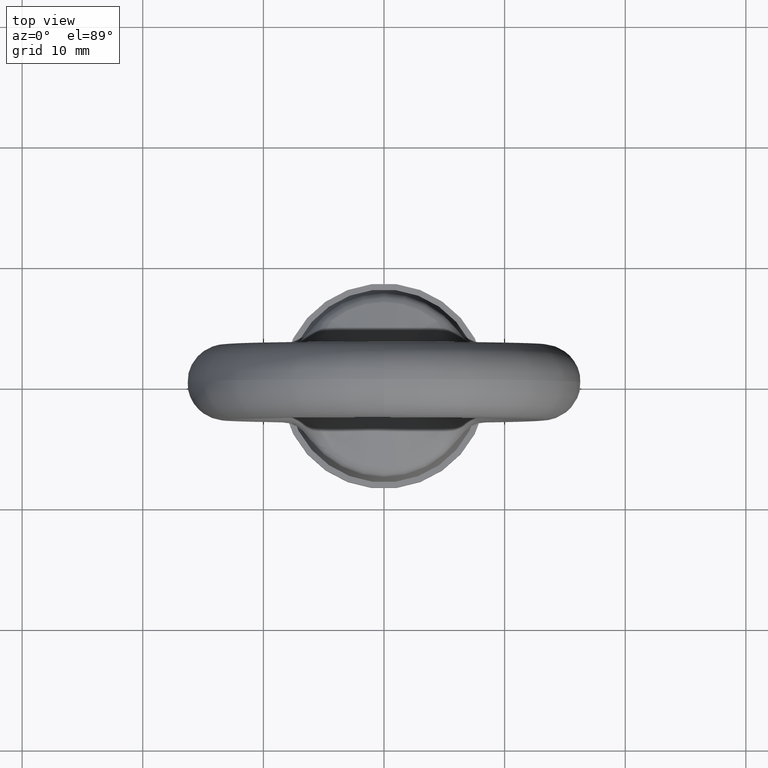
[diagram: clean part render]
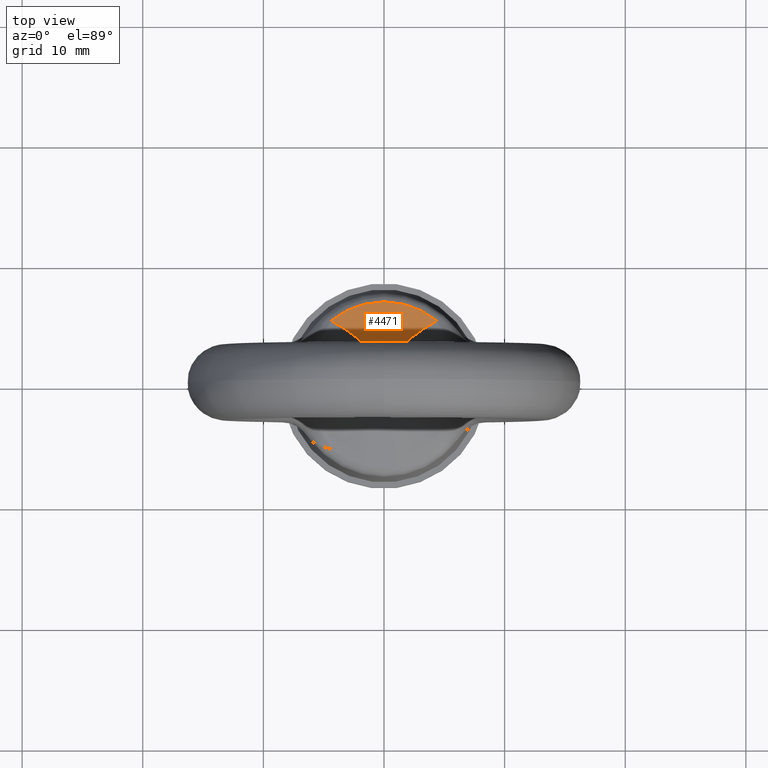
[diagram: same view with one face highlighted and labeled with its STEP entity id]
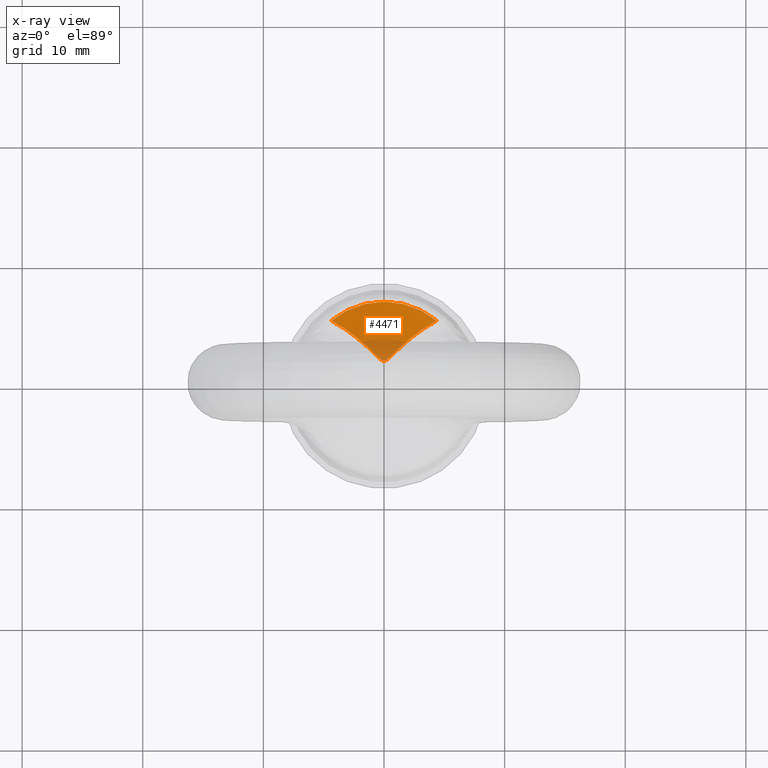
[diagram: x-ray of the same camera — body ghosted, the highlighted face saturated]
A machine part, top view. The second image highlights one B-rep face of the part: STEP entity #4471.
The next image is the same camera in x-ray: the body ghosted, the highlighted face saturated — about 14% of this face is hidden behind the body in this view.
In plain terms, the highlighted conical surface has half-angle 75.187 deg.
Its self-contained STEP definition (entity closure, byte-faithful):
#1247 = DIRECTION ( 'NONE',  ( -1.000000000000000000, 0.0000000000000000000, 0.0000000000000000000 ) ) ;
#1248 = DIRECTION ( 'NONE',  ( 0.0000000000000000000, 0.0000000000000000000, -1.000000000000000000 ) ) ;
#1249 = CARTESIAN_POINT ( 'NONE',  ( 0.0000000000000000000, 0.0000000000000000000, -12.00000327454090200 ) ) ;
#1250 = AXIS2_PLACEMENT_3D ( 'NONE', #1249, #1248, #1247 ) ;
#1251 = CARTESIAN_POINT ( 'NONE',  ( 0.0000000000000000000, 0.0000000000000000000, -11.82035886595320000 ) ) ;
#1252 = CONICAL_SURFACE ( 'NONE', #1250, 7.562556070928420300, 1.312253913343820200 ) ;
#1253 = FACE_OUTER_BOUND ( 'NONE', #4472, .T. ) ;
#1310 = CARTESIAN_POINT ( 'NONE',  ( -4.383375090677879400, 5.307113808483039800, -11.82035886595320000 ) ) ;
#1311 = CARTESIAN_POINT ( 'NONE',  ( 4.383375090677884800, 5.307113808483039800, -11.82035886595320000 ) ) ;
#1312 = DIRECTION ( 'NONE',  ( 1.000000000000000000, 0.0000000000000000000, 0.0000000000000000000 ) ) ;
#1313 = DIRECTION ( 'NONE',  ( 0.0000000000000000000, 0.0000000000000000000, 1.000000000000000000 ) ) ;
#1314 = AXIS2_PLACEMENT_3D ( 'NONE', #1251, #1313, #1312 ) ;
#1315 = CIRCLE ( 'NONE', #1314, 6.883272053447160300 ) ;
#2321 = CARTESIAN_POINT ( 'NONE',  ( 4.383375090677884800, 5.307113808483039800, -11.82035886595320000 ) ) ;
#2322 = CARTESIAN_POINT ( 'NONE',  ( 3.566652459884731600, 4.875555574791705200, -11.59481557615883900 ) ) ;
#2323 = CARTESIAN_POINT ( 'NONE',  ( 2.810234521547504600, 4.356393167962538700, -11.36826128347265200 ) ) ;
#4471 = ADVANCED_FACE ( 'NONE', ( #1253 ), #1252, .T. ) ;
#4472 = EDGE_LOOP ( 'NONE', ( #4473, #4589 ) ) ;
#4473 = ORIENTED_EDGE ( 'NONE', *, *, #4474, .T. ) ;
#4474 = EDGE_CURVE ( 'NONE', #4475, #4476, #1315, .T. ) ;
#4475 = VERTEX_POINT ( 'NONE', #1311 ) ;
#4476 = VERTEX_POINT ( 'NONE', #1310 ) ;
#4589 = ORIENTED_EDGE ( 'NONE', *, *, #4590, .T. ) ;
#4590 = EDGE_CURVE ( 'NONE', #4476, #4475, #7370, .T. ) ;
#7280 = CARTESIAN_POINT ( 'NONE',  ( 1.750507485430973000, 3.469051385512238500, -11.02669771930194100 ) ) ;
#7281 = CARTESIAN_POINT ( 'NONE',  ( 1.412033229726243200, 3.155254818239794800, -10.91280066053382700 ) ) ;
#7282 = CARTESIAN_POINT ( 'NONE',  ( 0.9195787010115706900, 2.668079675143895500, -10.74591171763279400 ) ) ;
#7283 = CARTESIAN_POINT ( 'NONE',  ( 0.7586439645057717600, 2.502216056348609600, -10.69074099464750400 ) ) ;
#7284 = CARTESIAN_POINT ( 'NONE',  ( 0.5096597222430625500, 2.259783229994323700, -10.61242557287939700 ) ) ;
#7285 = CARTESIAN_POINT ( 'NONE',  ( 0.4255710751506052200, 2.179522824176067800, -10.58690775365657400 ) ) ;
#7286 = CARTESIAN_POINT ( 'NONE',  ( 0.2877155168357015100, 2.071032753941788800, -10.55286751349224200 ) ) ;
#7287 = CARTESIAN_POINT ( 'NONE',  ( 0.2401995182188390900, 2.037257521028040600, -10.54235300231890600 ) ) ;
#7288 = CARTESIAN_POINT ( 'NONE',  ( 0.1369021240841870900, 1.982437054277230700, -10.52536687418735700 ) ) ;
#7289 = CARTESIAN_POINT ( 'NONE',  ( 0.07870992137238833100, 1.961178321514120500, -10.51882753187805600 ) ) ;
#7290 = CARTESIAN_POINT ( 'NONE',  ( -0.04196265129505780100, 1.954259675236806900, -10.51669839774702600 ) ) ;
#7291 = CARTESIAN_POINT ( 'NONE',  ( -0.1019936144626064400, 1.969284987663809700, -10.52131255171258900 ) ) ;
#7292 = CARTESIAN_POINT ( 'NONE',  ( -0.2110781151855828900, 2.018837664753271500, -10.53663483191443400 ) ) ;
#7293 = CARTESIAN_POINT ( 'NONE',  ( -0.2604815879835962700, 2.051721077837779500, -10.54684445202691600 ) ) ;
#7294 = CARTESIAN_POINT ( 'NONE',  ( -0.4026057345075228500, 2.158549296402533500, -10.58027824926283200 ) ) ;
#7295 = CARTESIAN_POINT ( 'NONE',  ( -0.4875811805688726200, 2.238954748213266600, -10.60577108084254200 ) ) ;
#7296 = CARTESIAN_POINT ( 'NONE',  ( -0.7396008049427961200, 2.482554807024389500, -10.68426655648407800 ) ) ;
#7297 = CARTESIAN_POINT ( 'NONE',  ( -0.9016977246516544300, 2.650081693946245000, -10.73986136065491300 ) ) ;
#7304 = CARTESIAN_POINT ( 'NONE',  ( -1.397898176269576800, 3.141844086525494200, -10.90799291532978000 ) ) ;
#7305 = CARTESIAN_POINT ( 'NONE',  ( -1.737320777005034300, 3.457297693340970000, -11.02234449736522300 ) ) ;
#7306 = CARTESIAN_POINT ( 'NONE',  ( -2.798019463009791400, 4.347551089413340000, -11.36452464888773400 ) ) ;
#7307 = CARTESIAN_POINT ( 'NONE',  ( -3.557925837399230400, 4.870944406147743600, -11.59240566235216700 ) ) ;
#7308 = CARTESIAN_POINT ( 'NONE',  ( -4.383375090677879400, 5.307113808483039800, -11.82035886595320000 ) ) ;
#7370 = B_SPLINE_CURVE_WITH_KNOTS ( 'NONE', 3,
 ( #7308, #7307, #7306, #7305, #7304, #7297, #7296, #7295, #7294, #7293, #7292, #7291, #7290, #7289, #7288, #7287, #7286, #7285, #7284, #7283, #7282, #7281, #7280, #2323, #2322, #2321 ),
 .UNSPECIFIED., .F., .F.,
 ( 4, 2, 2, 2, 2, 2, 2, 2, 2, 2, 2, 2, 4 ),
 ( 8.845388854693243300E-018, 0.002849000128723125000, 0.004273500193084684000, 0.004985750225265463100, 0.005341875241355853100, 0.005519937749401048100, 0.005698000257446243100, 0.005876062765491438100, 0.006054125273536633100, 0.006410250289627023000, 0.007122500321807803900, 0.008547000386169366400, 0.01139600051489249000 ),
 .UNSPECIFIED. ) ;